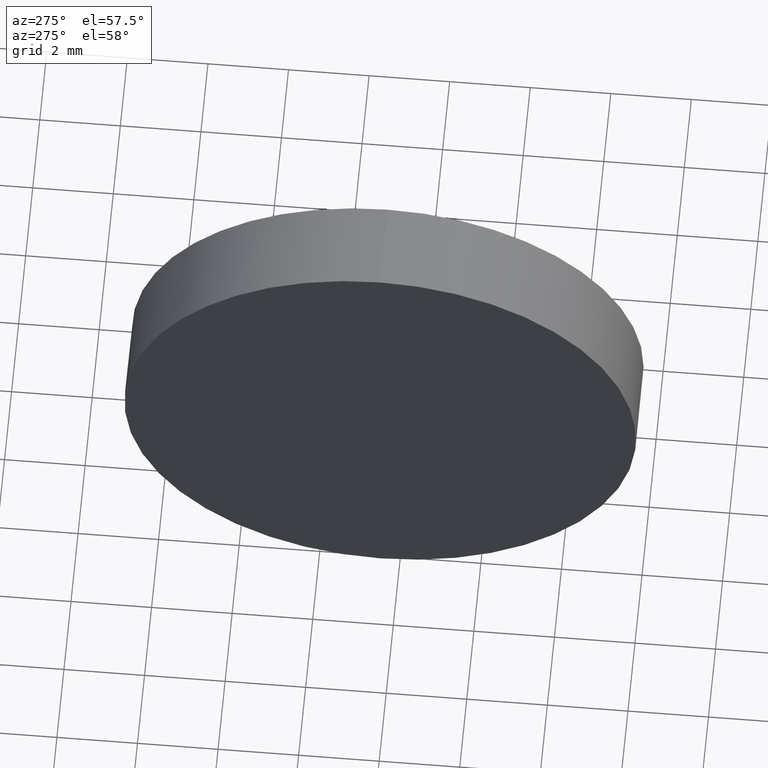
[diagram: clean part render]
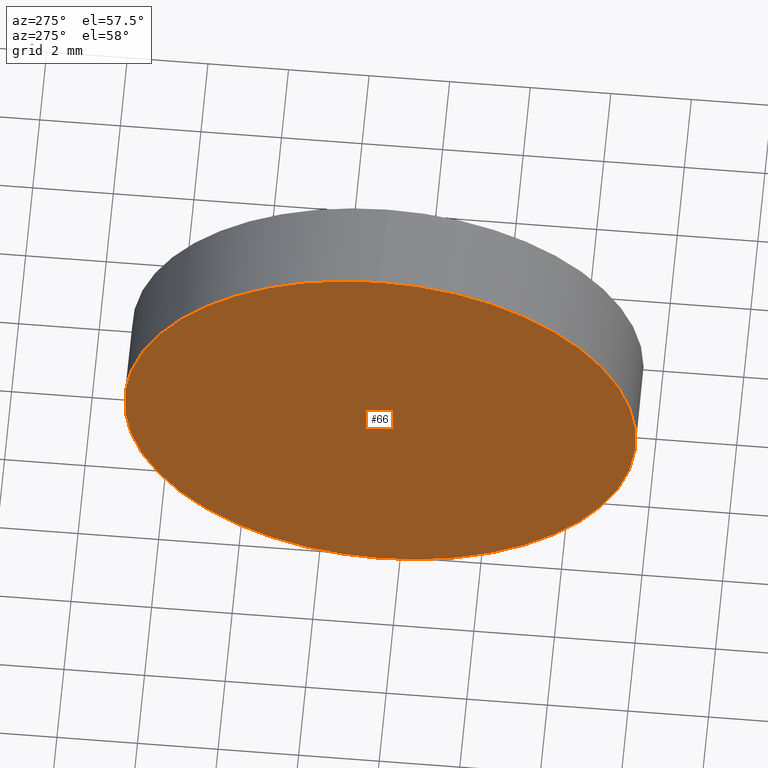
[diagram: same view with one face highlighted and labeled with its STEP entity id]
A machine part, auxiliary view. The second image highlights one B-rep face of the part: STEP entity #66.
In plain terms, the highlighted planar face has unit normal (1, 0, 0).
Its self-contained STEP definition (entity closure, byte-faithful):
#20 = CARTESIAN_POINT ( 'NONE',  ( 47.75370850148247100, 28.47759563463748100, 6.350000000000001400 ) ) ;
#41 = CARTESIAN_POINT ( 'NONE',  ( 47.75370850148247100, 28.47759563463748100, -6.350000000000001400 ) ) ;
#44 = CARTESIAN_POINT ( 'NONE',  ( 47.75370850148247100, 28.47759563463748100, 0.0000000000000000000 ) ) ;
#46 = DIRECTION ( 'NONE',  ( -1.000000000000000000, -0.0000000000000000000, -0.0000000000000000000 ) ) ;
#53 = CIRCLE ( 'NONE', #151, 6.350000000000001400 ) ;
#55 = EDGE_CURVE ( 'NONE', #111, #161, #95, .T. ) ;
#61 = DIRECTION ( 'NONE',  ( 0.0000000000000000000, 0.0000000000000000000, 1.000000000000000000 ) ) ;
#65 = CARTESIAN_POINT ( 'NONE',  ( 47.75370850148247100, 28.47759563463748100, 0.0000000000000000000 ) ) ;
#66 = ADVANCED_FACE ( 'NONE', ( #186 ), #98, .F. ) ;
#70 = DIRECTION ( 'NONE',  ( 0.0000000000000000000, 0.0000000000000000000, -1.000000000000000000 ) ) ;
#86 = DIRECTION ( 'NONE',  ( 1.000000000000000000, 0.0000000000000000000, 0.0000000000000000000 ) ) ;
#95 = CIRCLE ( 'NONE', #142, 6.350000000000001400 ) ;
#98 = PLANE ( 'NONE',  #112 ) ;
#100 = DIRECTION ( 'NONE',  ( -1.000000000000000000, -0.0000000000000000000, -0.0000000000000000000 ) ) ;
#102 = ORIENTED_EDGE ( 'NONE', *, *, #55, .T. ) ;
#111 = VERTEX_POINT ( 'NONE', #20 ) ;
#112 = AXIS2_PLACEMENT_3D ( 'NONE', #65, #86, #70 ) ;
#113 = ORIENTED_EDGE ( 'NONE', *, *, #185, .T. ) ;
#142 = AXIS2_PLACEMENT_3D ( 'NONE', #44, #100, #146 ) ;
#146 = DIRECTION ( 'NONE',  ( 0.0000000000000000000, 0.0000000000000000000, 1.000000000000000000 ) ) ;
#151 = AXIS2_PLACEMENT_3D ( 'NONE', #183, #46, #61 ) ;
#154 = EDGE_LOOP ( 'NONE', ( #102, #113 ) ) ;
#161 = VERTEX_POINT ( 'NONE', #41 ) ;
#183 = CARTESIAN_POINT ( 'NONE',  ( 47.75370850148247100, 28.47759563463748100, 0.0000000000000000000 ) ) ;
#185 = EDGE_CURVE ( 'NONE', #161, #111, #53, .T. ) ;
#186 = FACE_OUTER_BOUND ( 'NONE', #154, .T. ) ;